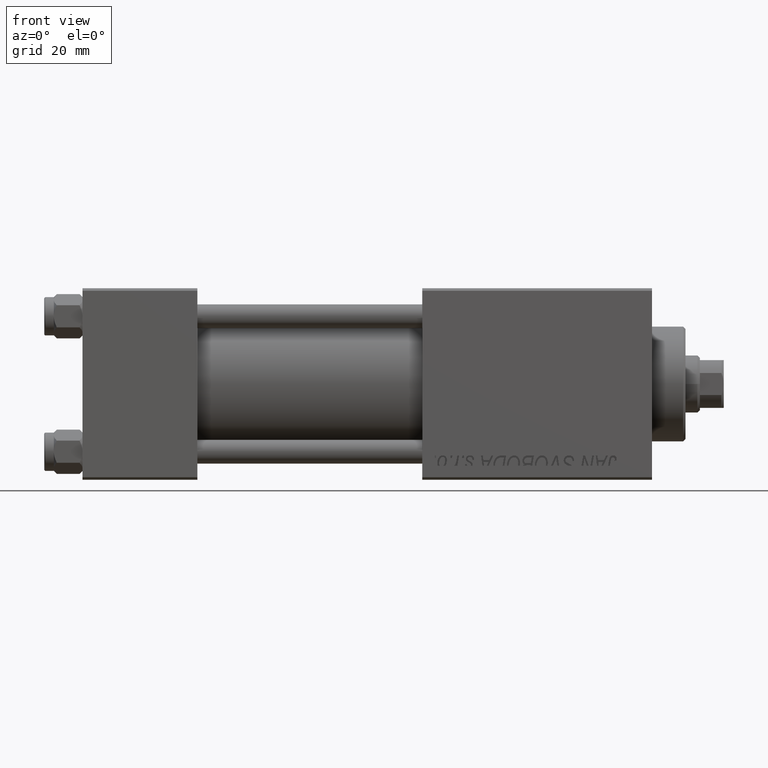
[diagram: clean part render]
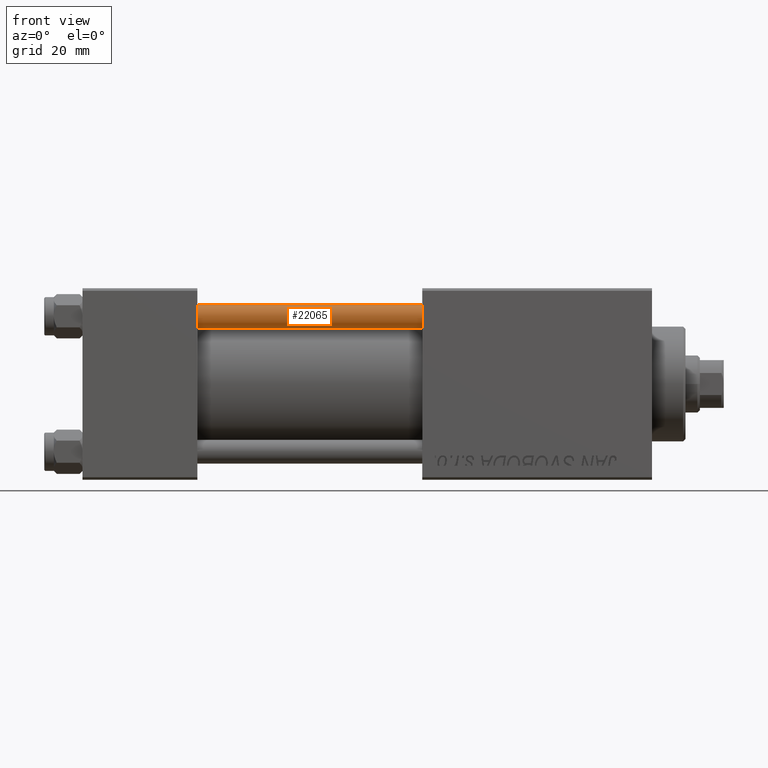
[diagram: same view with one face highlighted and labeled with its STEP entity id]
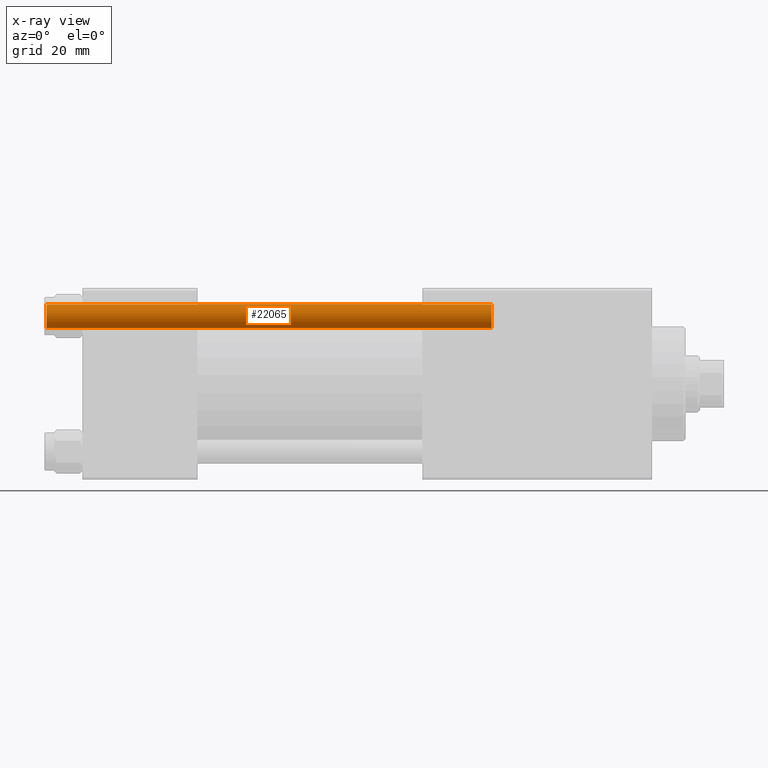
[diagram: x-ray of the same camera — body ghosted, the highlighted face saturated]
A machine part, front view. The second image highlights one B-rep face of the part: STEP entity #22065.
The next image is the same camera in x-ray: the body ghosted, the highlighted face saturated — about 0% of this face is hidden behind the body in this view.
In plain terms, the highlighted cylindrical surface (edge-blend (fillet) strip) has radius 2.5 mm, axis along (1, 0, -0).
Its self-contained STEP definition (entity closure, byte-faithful):
#30 = CARTESIAN_POINT ( 'NONE',  ( 0.000000000000000000, 0.000000000000000000, 93.50000000000001421 ) ) ;
#184 = VECTOR ( 'NONE', #32177, 1000.000000000000000 ) ;
#3622 = EDGE_CURVE ( 'NONE', #35626, #20526, #38896, .T. ) ;
#3791 = ORIENTED_EDGE ( 'NONE', *, *, #40722, .T. ) ;
#9993 = ORIENTED_EDGE ( 'NONE', *, *, #43766, .F. ) ;
#11760 = DIRECTION ( 'NONE',  ( -1.000000000000000000, 0.000000000000000000, 0.000000000000000000 ) ) ;
#12985 = DIRECTION ( 'NONE',  ( -0.000000000000000000, -0.000000000000000000, 1.000000000000000000 ) ) ;
#14577 = FACE_OUTER_BOUND ( 'NONE', #22906, .T. ) ;
#15784 = AXIS2_PLACEMENT_3D ( 'NONE', #48069, #12985, #28501 ) ;
#16983 = CARTESIAN_POINT ( 'NONE',  ( 2.500000000000000000, 3.061616997868383141E-16, 93.50000000000001421 ) ) ;
#18541 = CARTESIAN_POINT ( 'NONE',  ( -2.500000000000000000, 0.000000000000000000, 0.5000000000000004441 ) ) ;
#20526 = VERTEX_POINT ( 'NONE', #16983 ) ;
#21211 = LINE ( 'NONE', #32929, #184 ) ;
#22065 = ADVANCED_FACE ( 'NONE', ( #14577 ), #34412, .T. ) ;
#22906 = EDGE_LOOP ( 'NONE', ( #46516, #28006, #3791, #9993 ) ) ;
#28006 = ORIENTED_EDGE ( 'NONE', *, *, #44074, .T. ) ;
#28501 = DIRECTION ( 'NONE',  ( 1.000000000000000000, 0.000000000000000000, 0.000000000000000000 ) ) ;
#29152 = AXIS2_PLACEMENT_3D ( 'NONE', #30, #45808, #50115 ) ;
#30297 = LINE ( 'NONE', #49615, #49723 ) ;
#30345 = CARTESIAN_POINT ( 'NONE',  ( 0.000000000000000000, 0.000000000000000000, 94.00000000000000000 ) ) ;
#31624 = CARTESIAN_POINT ( 'NONE',  ( 2.500000000000000000, 3.061616997868383141E-16, 0.5000000000000004441 ) ) ;
#32177 = DIRECTION ( 'NONE',  ( -0.000000000000000000, -0.000000000000000000, -1.000000000000000000 ) ) ;
#32929 = CARTESIAN_POINT ( 'NONE',  ( -2.500000000000000000, 0.000000000000000000, 94.00000000000000000 ) ) ;
#34412 = CYLINDRICAL_SURFACE ( 'NONE', #41252, 2.500000000000000000 ) ;
#35626 = VERTEX_POINT ( 'NONE', #44097 ) ;
#37838 = VERTEX_POINT ( 'NONE', #18541 ) ;
#38896 = CIRCLE ( 'NONE', #29152, 2.500000000000000000 ) ;
#40722 = EDGE_CURVE ( 'NONE', #44809, #37838, #45024, .T. ) ;
#41252 = AXIS2_PLACEMENT_3D ( 'NONE', #30345, #45849, #11760 ) ;
#43766 = EDGE_CURVE ( 'NONE', #35626, #37838, #21211, .T. ) ;
#44074 = EDGE_CURVE ( 'NONE', #20526, #44809, #30297, .T. ) ;
#44097 = CARTESIAN_POINT ( 'NONE',  ( -2.500000000000000000, 0.000000000000000000, 93.50000000000001421 ) ) ;
#44809 = VERTEX_POINT ( 'NONE', #31624 ) ;
#45024 = CIRCLE ( 'NONE', #15784, 2.500000000000000000 ) ;
#45799 = DIRECTION ( 'NONE',  ( -0.000000000000000000, -0.000000000000000000, -1.000000000000000000 ) ) ;
#45808 = DIRECTION ( 'NONE',  ( 0.000000000000000000, 0.000000000000000000, -1.000000000000000000 ) ) ;
#45849 = DIRECTION ( 'NONE',  ( -0.000000000000000000, -0.000000000000000000, -1.000000000000000000 ) ) ;
#46516 = ORIENTED_EDGE ( 'NONE', *, *, #3622, .T. ) ;
#48069 = CARTESIAN_POINT ( 'NONE',  ( 0.000000000000000000, 0.000000000000000000, 0.5000000000000004441 ) ) ;
#49615 = CARTESIAN_POINT ( 'NONE',  ( 2.500000000000000000, 3.061616997868383141E-16, 94.00000000000000000 ) ) ;
#49723 = VECTOR ( 'NONE', #45799, 1000.000000000000000 ) ;
#50115 = DIRECTION ( 'NONE',  ( 1.000000000000000000, 0.000000000000000000, 0.000000000000000000 ) ) ;